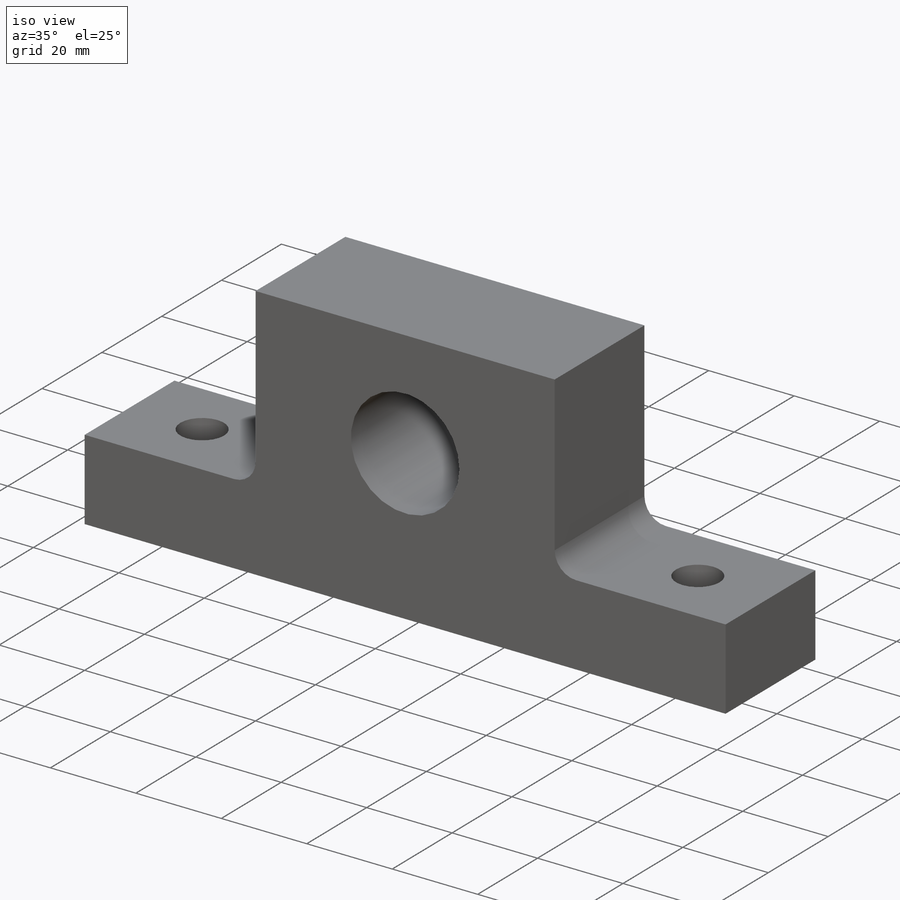
[diagram: iso view]
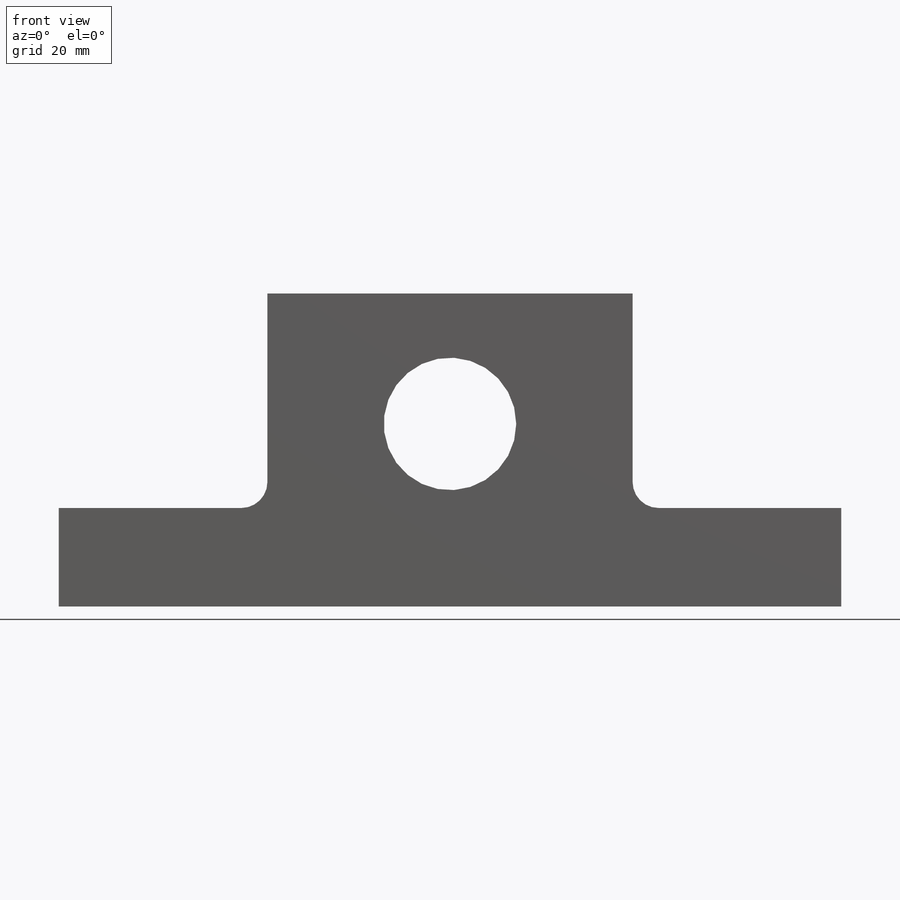
[diagram: front view]
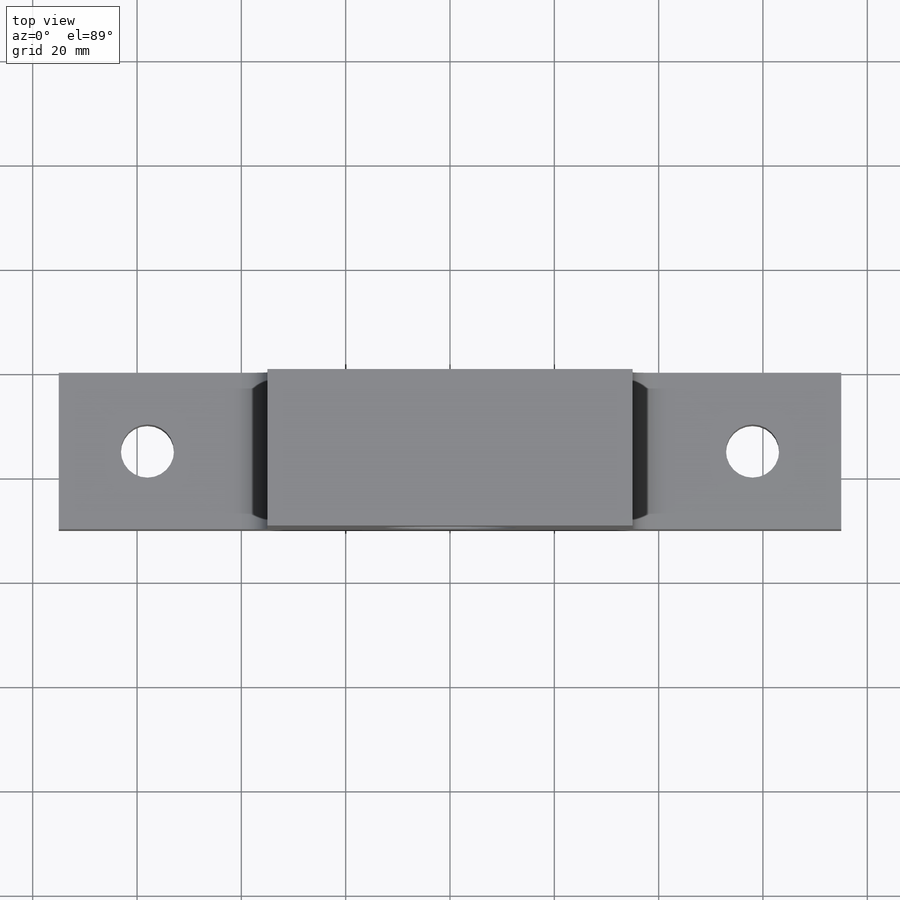
[diagram: top view]
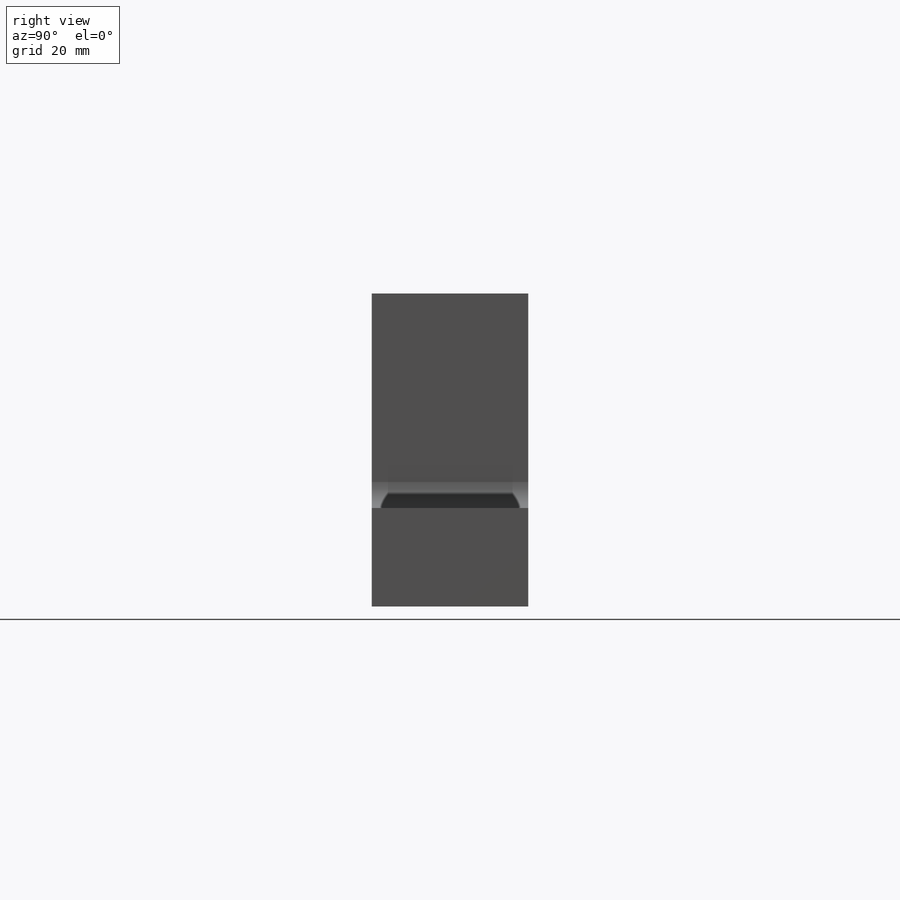
[diagram: right view]
SOLIDWORKS PART (.sldprt)
format: sldprt  version: not decoded by parser v0  size: 201,728 bytes
history: native  units: mm
features: sketch x7, hole x2, material x1, extrude x1 (+12 scaffold rows collapsed)
feature tree (23):
  scaffold x12  (default folders/planes/origin — collapsed)
  material  "Material <not specified>"
  sketch  "Sketch1"  dims[D1=5.0mm D2=75.0mm D3=35.0mm D4=60.0mm]
  extrude  "Boss-Extrude1"  Depth=30mm
  sketch  "Sketch2"  dims[D1=25.0mm]
  hole  "1 (1.0000) Dowel Hole1"  Diameter=25.4mm Depth=30mm
  sketch  "Sketch4"
  sketch  "Sketch5"  dims[hole-wizard template sketch: 60 standard entries collapsed; hole parameters kept: c18.Thru Hole Depth=30.0mm]
  sketch  "Sketch7"  dims[D1=17.0mm D2=17.0mm]
  hole  "Tap Drill for M12x1.75 Tap1"  Diameter=10.2mm Depth=30mm
  sketch  "Sketch11"
  sketch  "Sketch10"  dims[hole-wizard template sketch: 46 standard entries collapsed; hole parameters kept: c15.Hole Dia.=10.2mm c15.Hole Depth=30.0mm c15.D3=~14.816244mm c15.Drill Angle=118.0deg]
decode coverage: 8 of 10 modeling features carry decoded parameters
note: ~ marks probable driven/reference dimensions
note: suppression state not decoded; provenance and decode notes live in map.json
